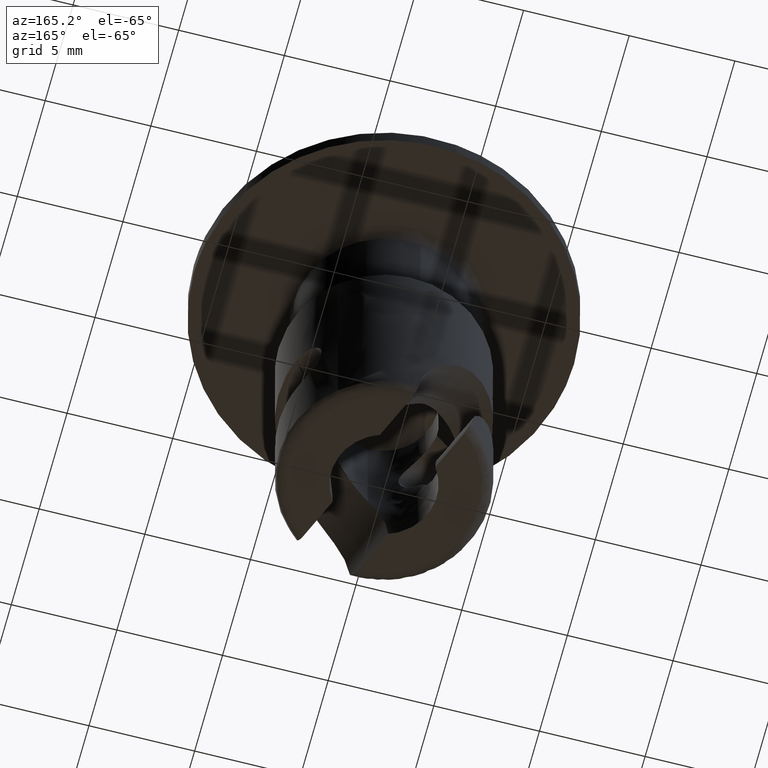
[diagram: clean part render]
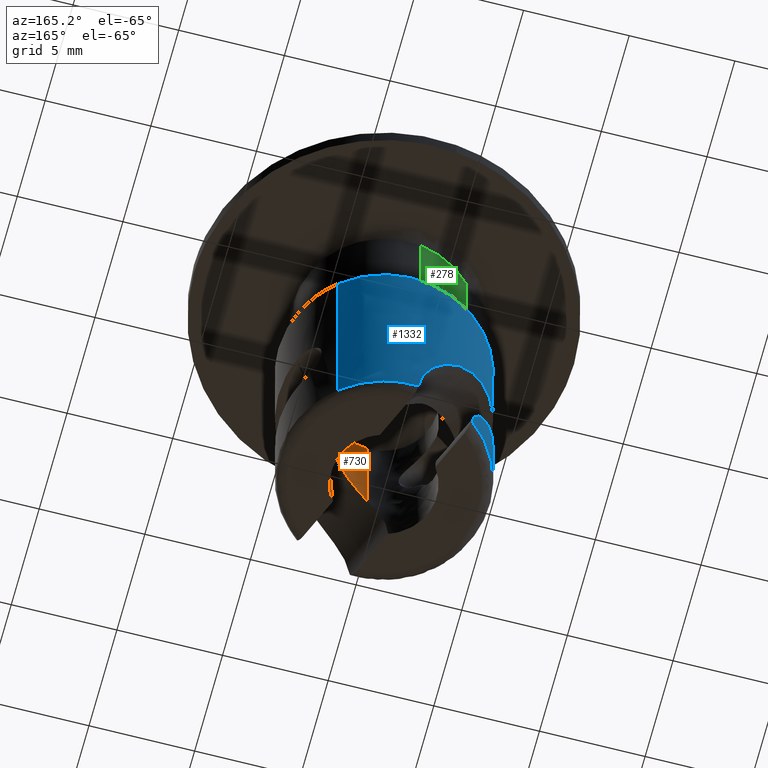
[diagram: same view with three faces highlighted in distinct colors, each labeled with its STEP entity id]
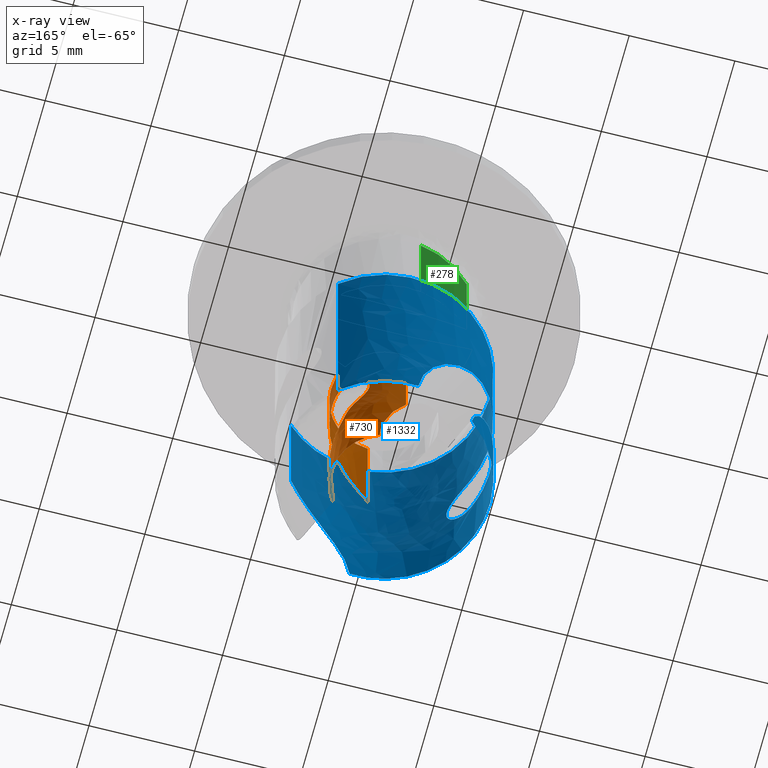
[diagram: x-ray of the same camera — body ghosted, the three highlighted faces saturated]
A machine part, auxiliary view with three faces highlighted in distinct colors.
The next image is the same camera in x-ray (body ghosted, the three faces saturated) — at least one of them is partly hidden behind the body in this view.
Their STEP definitions:

[orange] entity #730 — the highlighted face is a freeform B-spline surface patch.
#465=CARTESIAN_POINT('',(-0.396704945280490,2.468324368147347,-8.774992000000001));
#466=CARTESIAN_POINT('',(-0.253725209773061,2.491303831009947,-8.774992000000001));
#467=CARTESIAN_POINT('',(-0.109048468413340,2.497620553954643,-8.774991999999999));
#468=CARTESIAN_POINT('',(2.388572085541303,2.606669022367983,-8.774991999999999));
#469=CARTESIAN_POINT('',(2.497620553954643,0.109048468413340,-8.774991999999999));
#470=CARTESIAN_POINT('',(2.606669022367983,-2.388572085541303,-8.774991999999999));
#471=CARTESIAN_POINT('',(0.109048468413340,-2.497620553954643,-8.774991999999999));
#472=CARTESIAN_POINT('',(-0.396704945280490,2.468324368147347,-18.230616999999999));
#473=CARTESIAN_POINT('',(-0.253725209773061,2.491303831009947,-18.230616999999999));
#474=CARTESIAN_POINT('',(-0.109048468413340,2.497620553954643,-18.230616999999999));
#475=CARTESIAN_POINT('',(2.388572085541303,2.606669022367983,-18.230616999999995));
#476=CARTESIAN_POINT('',(2.497620553954643,0.109048468413340,-18.230616999999999));
#477=CARTESIAN_POINT('',(2.606669022367983,-2.388572085541303,-18.230616999999995));
#478=CARTESIAN_POINT('',(0.109048468413340,-2.497620553954643,-18.230616999999999));
#486=(BOUNDED_SURFACE()B_SPLINE_SURFACE(2,1,((#465,#472),(#466,#473),(#467,#474),(#468,#475),(#469,#476),(#470,#477),(#471,#478)),.UNSPECIFIED.,.F.,.F.,.U.)B_SPLINE_SURFACE_WITH_KNOTS((3,2,2,3),(2,2),(0.0,0.331370849898476,4.473506473629424,8.615642097360373),(0.0,9.455625000000005),.UNSPECIFIED.)GEOMETRIC_REPRESENTATION_ITEM()RATIONAL_B_SPLINE_SURFACE(((0.956886118190660,0.956886118190660),(0.976568542494924,0.976568542494924),(1.0,1.0),(0.707106781186548,0.707106781186548),(1.0,1.0),(0.707106781186548,0.707106781186548),(1.0,1.0)))REPRESENTATION_ITEM('')SURFACE());
#487=CARTESIAN_POINT('',(-0.396705262397814,2.468326342398648,-14.257818604120629));
#488=VERTEX_POINT('',#487);
#489=CARTESIAN_POINT('',(0.821620629966657,2.361130987559410,-17.999991999999999));
#490=VERTEX_POINT('',#489);
#491=CARTESIAN_POINT('',(-0.396705262397814,2.468326342398648,-14.257818604120629));
#492=CARTESIAN_POINT('',(-0.374689728732181,2.471862556015108,-14.292135446351010));
#493=CARTESIAN_POINT('',(-0.352860775295733,2.475066859503342,-14.326635483322530));
#494=CARTESIAN_POINT('',(-0.274510751987947,2.485539854627478,-14.452236586623471));
#495=CARTESIAN_POINT('',(-0.219122534947130,2.490963330062837,-14.544421271481349));
#496=CARTESIAN_POINT('',(-0.111245094673721,2.498106902240840,-14.731391844103101));
#497=CARTESIAN_POINT('',(-0.058756051455334,2.499816637977689,-14.826203044071510));
#498=CARTESIAN_POINT('',(0.092550910449953,2.500320389652285,-15.111869867121820));
#499=CARTESIAN_POINT('',(0.185777978705443,2.494552241246467,-15.304874506508179));
#500=CARTESIAN_POINT('',(0.355782634028354,2.476029930818079,-15.696684103216359));
#501=CARTESIAN_POINT('',(0.432564614344896,2.463259284224091,-15.895486642062760));
#502=CARTESIAN_POINT('',(0.567810437404402,2.435641776414513,-16.299821152886910));
#503=CARTESIAN_POINT('',(0.626276591544811,2.420796277435291,-16.505352327864390));
#504=CARTESIAN_POINT('',(0.698214385252341,2.400648686511582,-16.819624382292108));
#505=CARTESIAN_POINT('',(0.719589156789086,2.394277061143177,-16.925553476065271));
#506=CARTESIAN_POINT('',(0.756523998607965,2.382864482991104,-17.138808192220012));
#507=CARTESIAN_POINT('',(0.772021192912830,2.377846312257507,-17.245723948288880));
#508=CARTESIAN_POINT('',(0.809320382263603,2.365520120731887,-17.567381413073349));
#509=CARTESIAN_POINT('',(0.821911469345533,2.361029684390025,-17.783037621031980));
#510=CARTESIAN_POINT('',(0.821620629966657,2.361130987559410,-17.999991999999999));
#511=B_SPLINE_CURVE_WITH_KNOTS('',3,(#491,#492,#493,#494,#495,#496,#497,#498,#499,#500,#501,#502,#503,#504,#505,#506,#507,#508,#509,#510),.UNSPECIFIED.,.F.,.U.,(4,2,2,2,2,2,2,2,2,4),(0.226156631961542,0.249999999999999,0.312499999999999,0.374999999999998,0.499999999999999,0.624999999999998,0.749999999999997,0.812499999999998,0.874999999999999,1.0),.UNSPECIFIED.);
#512=EDGE_CURVE('',#488,#490,#511,.T.);
#513=ORIENTED_EDGE('',*,*,#512,.T.);
#514=CARTESIAN_POINT('',(2.045401301169760,-1.437474677679406,-17.999991999999999));
#515=VERTEX_POINT('',#514);
#516=CARTESIAN_POINT('',(2.045401301169760,-1.437474677679406,-17.999991999999999));
#517=CARTESIAN_POINT('',(2.761412070532111,-0.418653702509701,-17.999991999999999));
#518=CARTESIAN_POINT('',(2.379559821214619,0.766612703206290,-17.999991999999999));
#519=CARTESIAN_POINT('',(1.997707571897127,1.951879108922280,-17.999991999999999));
#520=CARTESIAN_POINT('',(0.821620629966657,2.361130987559410,-17.999991999999999));
#528=(BOUNDED_CURVE()B_SPLINE_CURVE(2,(#516,#517,#518,#519,#520),.UNSPECIFIED.,.F.,.U.)B_SPLINE_CURVE_WITH_KNOTS((3,2,3),(0.0,0.500000000000000,1.0),.UNSPECIFIED.)CURVE()GEOMETRIC_REPRESENTATION_ITEM()RATIONAL_B_SPLINE_CURVE((1.0,0.895105287378953,1.0,0.895105287378953,1.0))REPRESENTATION_ITEM(''));
#529=EDGE_CURVE('',#515,#490,#528,.T.);
#530=ORIENTED_EDGE('',*,*,#529,.F.);
#531=CARTESIAN_POINT('',(2.499210753731970,0.062814078282511,-15.336850570813599));
#532=VERTEX_POINT('',#531);
#533=CARTESIAN_POINT('',(2.499210753731970,0.062814078282511,-15.336850570813599));
#534=CARTESIAN_POINT('',(2.500795930451270,-0.000256029753238,-15.363059882491539));
#535=CARTESIAN_POINT('',(2.499969302792424,-0.062337213410371,-15.392029377248811));
#536=CARTESIAN_POINT('',(2.495447517314723,-0.153866172688587,-15.439862898441520));
#537=CARTESIAN_POINT('',(2.493384361566834,-0.184189313353710,-15.456587649218131));
#538=CARTESIAN_POINT('',(2.488274884368984,-0.243678840850571,-15.491192952226440));
#539=CARTESIAN_POINT('',(2.485229559556989,-0.272890545252784,-15.509092108229609));
#540=CARTESIAN_POINT('',(2.467798225914552,-0.416335598189665,-15.601558018541059));
#541=CARTESIAN_POINT('',(2.446841958596684,-0.522766882387621,-15.684994209115510));
#542=CARTESIAN_POINT('',(2.408978557939195,-0.670374897581073,-15.824677966676530));
#543=CARTESIAN_POINT('',(2.395286913211638,-0.717472967083684,-15.873630825600189));
#544=CARTESIAN_POINT('',(2.366917471059800,-0.806144242856497,-15.974564309344590));
#545=CARTESIAN_POINT('',(2.352181641734803,-0.847952127497165,-16.026757931051929));
#546=CARTESIAN_POINT('',(2.322218960212438,-0.926865894868870,-16.134503675885409));
#547=CARTESIAN_POINT('',(2.306991163065410,-0.963971179851998,-16.190055984325440));
#548=CARTESIAN_POINT('',(2.276576764679876,-1.033753789142683,-16.304461251146741));
#549=CARTESIAN_POINT('',(2.261334952213895,-1.066536558688048,-16.363545406494140));
#550=CARTESIAN_POINT('',(2.216973387833687,-1.157399233681560,-16.543290554489442));
#551=CARTESIAN_POINT('',(2.189142644228118,-1.208352199881593,-16.666746987157978));
#552=CARTESIAN_POINT('',(2.139487239111169,-1.294239123739205,-16.920290638804978));
#553=CARTESIAN_POINT('',(2.117646197656682,-1.329159387210768,-17.050379410624021));
#554=CARTESIAN_POINT('',(2.090766276917059,-1.370754864690058,-17.250328398531369));
#555=CARTESIAN_POINT('',(2.082778451008068,-1.382817708224666,-17.317889944048510));
#556=CARTESIAN_POINT('',(2.069089281024604,-1.403217886613616,-17.453118900737412));
#557=CARTESIAN_POINT('',(2.063360999046204,-1.411597122432164,-17.520957845477479));
#558=CARTESIAN_POINT('',(2.049634837084111,-1.431522695728585,-17.725132787668858));
#559=CARTESIAN_POINT('',(2.045100114556330,-1.437903263725405,-17.862123124114230));
#560=CARTESIAN_POINT('',(2.045401301169760,-1.437474677679406,-17.999991999999999));
#561=B_SPLINE_CURVE_WITH_KNOTS('',3,(#533,#534,#535,#536,#537,#538,#539,#540,#541,#542,#543,#544,#545,#546,#547,#548,#549,#550,#551,#552,#553,#554,#555,#556,#557,#558,#559,#560),.UNSPECIFIED.,.F.,.U.,(4,2,2,2,2,2,2,2,2,2,2,2,2,4),(0.0,0.062500000000001,0.093750000000001,0.125000000000001,0.249999999999999,0.312499999999999,0.374999999999998,0.437499999999998,0.499999999999997,0.624999999999999,0.750000000000000,0.812500000000001,0.875000000000002,1.0),.UNSPECIFIED.);
#562=EDGE_CURVE('',#532,#515,#561,.T.);
#563=ORIENTED_EDGE('',*,*,#562,.F.);
#564=CARTESIAN_POINT('',(2.192192570131095,1.201647703399704,-14.404152898566460));
#565=VERTEX_POINT('',#564);
#566=CARTESIAN_POINT('',(2.499210753731970,0.062814078282511,-15.336850570813599));
#567=CARTESIAN_POINT('',(2.496415410786188,0.174694188051851,-15.289002052346190));
#568=CARTESIAN_POINT('',(2.483958686722091,0.302198127169140,-15.223639530466480));
#569=CARTESIAN_POINT('',(2.466577816313009,0.407423460385551,-15.164988117721110));
#570=CARTESIAN_POINT('',(2.447945831850765,0.520223149203102,-15.102114844677811));
#571=CARTESIAN_POINT('',(2.422885276804002,0.625094283376247,-15.036186741589930));
#572=CARTESIAN_POINT('',(2.392268510254653,0.725983040322050,-14.959322956661600));
#573=CARTESIAN_POINT('',(2.331676711067861,0.925645904498509,-14.807206468017799));
#574=CARTESIAN_POINT('',(2.252528130132407,1.091549864821100,-14.629794512008679));
#575=CARTESIAN_POINT('',(2.192192570131095,1.201647703399704,-14.404152898566460));
#576=B_SPLINE_CURVE_WITH_KNOTS('',3,(#566,#567,#568,#569,#570,#571,#572,#573,#574,#575),.UNSPECIFIED.,.F.,.U.,(4,3,3,4),(0.0,0.365143920411378,0.756571719564218,1.531222908290109),.UNSPECIFIED.);
#577=EDGE_CURVE('',#532,#565,#576,.T.);
#578=ORIENTED_EDGE('',*,*,#577,.T.);
#579=CARTESIAN_POINT('',(1.826832561643425,1.706658369949690,-13.730946735680639));
#580=VERTEX_POINT('',#579);
#581=CARTESIAN_POINT('',(2.192192570131095,1.201647703399704,-14.404152898566460));
#582=CARTESIAN_POINT('',(2.186844966385770,1.211406282436965,-14.384209296597820));
#583=CARTESIAN_POINT('',(2.163625660492693,1.253140384245844,-14.301929838929320));
#584=CARTESIAN_POINT('',(2.115962694207326,1.333576215291075,-14.163932923806501));
#585=CARTESIAN_POINT('',(2.038082448045725,1.450011516401663,-14.001030671284740));
#586=CARTESIAN_POINT('',(1.944205139115999,1.575503629101182,-13.854140787470540));
#587=CARTESIAN_POINT('',(1.866094248091077,1.662786492993607,-13.772155712330390));
#588=CARTESIAN_POINT('',(1.826832561643425,1.706658369949690,-13.730946735680639));
#589=B_SPLINE_CURVE_WITH_KNOTS('',3,(#581,#582,#583,#584,#585,#586,#587,#588),.UNSPECIFIED.,.F.,.U.,(4,1,1,1,1,4),(0.459845224448665,0.499751192141575,0.626042495365312,0.750448278474783,0.874565042289710,0.999999521519359),.UNSPECIFIED.);
#590=EDGE_CURVE('',#565,#580,#589,.T.);
#591=ORIENTED_EDGE('',*,*,#590,.T.);
#592=CARTESIAN_POINT('',(2.499989811886465,0.007137258887898,-11.356055959354819));
#593=VERTEX_POINT('',#592);
#594=CARTESIAN_POINT('',(1.826832561643425,1.706658369949690,-13.730946735680639));
#595=CARTESIAN_POINT('',(1.767066150700487,1.770633227207039,-13.673676512274250));
#596=CARTESIAN_POINT('',(1.708087313436016,1.827073773717808,-13.609373454987249));
#597=CARTESIAN_POINT('',(1.622599312566099,1.902264882210716,-13.502324896482071));
#598=CARTESIAN_POINT('',(1.594487675239643,1.925829609637523,-13.464683873818780));
#599=CARTESIAN_POINT('',(1.540274407698292,1.969458143966866,-13.386452072127550));
#600=CARTESIAN_POINT('',(1.514283413102934,1.989444885664758,-13.346047001473689));
#601=CARTESIAN_POINT('',(1.440210819629576,2.044400554736581,-13.220854595772471));
#602=CARTESIAN_POINT('',(1.395950273623527,2.074428964313699,-13.132156517223670));
#603=CARTESIAN_POINT('',(1.340601731230505,2.110277273683501,-12.989753096874020));
#604=CARTESIAN_POINT('',(1.324058643692039,2.120645274407327,-12.940692472383930));
#605=CARTESIAN_POINT('',(1.296190268535969,2.137792894448473,-12.841995163376200));
#606=CARTESIAN_POINT('',(1.273259887340772,2.151535743989545,-12.742058105927750));
#607=CARTESIAN_POINT('',(1.260957093931493,2.158703686364656,-12.639533815316650));
#608=CARTESIAN_POINT('',(1.254398331455981,2.162521496841352,-12.535633052693390));
#609=CARTESIAN_POINT('',(1.254048515237521,2.162723130800720,-12.482654759737279));
#610=CARTESIAN_POINT('',(1.261837122515462,2.158194419537191,-12.326749444831661));
#611=CARTESIAN_POINT('',(1.278553593121174,2.148554206773818,-12.225290376059970));
#612=CARTESIAN_POINT('',(1.318693345202184,2.123980691720526,-12.076481239932029));
#613=CARTESIAN_POINT('',(1.334683896815955,2.114017702788071,-12.027266377413770));
#614=CARTESIAN_POINT('',(1.370442084734734,2.091014214324975,-11.932221965913390));
#615=CARTESIAN_POINT('',(1.390266019158191,2.077940640959833,-11.886106565062700));
#616=CARTESIAN_POINT('',(1.433210510972533,2.048556697437584,-11.796443556882661));
#617=CARTESIAN_POINT('',(1.456332210154970,2.032246174052890,-11.752896529221641));
#618=CARTESIAN_POINT('',(1.505419730975699,1.996156169210344,-11.668234258772490));
#619=CARTESIAN_POINT('',(1.531409408084433,1.976347941682260,-11.627121329162200));
#620=CARTESIAN_POINT('',(1.611519076577197,1.912503624276998,-11.509521960240100));
#621=CARTESIAN_POINT('',(1.668203518758274,1.863775169582016,-11.437863437489019));
#622=CARTESIAN_POINT('',(1.756063050032434,1.779854707552776,-11.339943142484961));
#623=CARTESIAN_POINT('',(1.785990336384930,1.749887901249459,-11.308772193386540));
#624=CARTESIAN_POINT('',(1.845427545424964,1.687088119567673,-11.250835837179009));
#625=CARTESIAN_POINT('',(1.875001186369977,1.654211330725529,-11.223976482824691));
#626=CARTESIAN_POINT('',(1.962890451351874,1.550883418684267,-11.149641820340660));
#627=CARTESIAN_POINT('',(2.020377166143445,1.475792478952029,-11.108323828988000));
#628=CARTESIAN_POINT('',(2.089645126030133,1.372589234133404,-11.067915933406560));
#629=CARTESIAN_POINT('',(2.103381344169588,1.351451293661468,-11.060401405680510));
#630=CARTESIAN_POINT('',(2.130168139240096,1.308822897380050,-11.046747996885930));
#631=CARTESIAN_POINT('',(2.143269605281312,1.287258820471910,-11.040577846239680));
#632=CARTESIAN_POINT('',(2.181681908314401,1.221811580463784,-11.024016226249589));
#633=CARTESIAN_POINT('',(2.230520450145986,1.132537271295754,-11.007121000227979));
#634=CARTESIAN_POINT('',(2.274404091119101,1.039131947814094,-11.000631366956631));
#635=CARTESIAN_POINT('',(2.315683667246536,0.943566811579788,-10.999535005959380));
#636=CARTESIAN_POINT('',(2.335074532501877,0.894490058363414,-11.001741282209970));
#637=CARTESIAN_POINT('',(2.387667182746537,0.748189529353685,-11.016369944680340));
#638=CARTESIAN_POINT('',(2.415924851106237,0.650613009977472,-11.036606894694820));
#639=CARTESIAN_POINT('',(2.449096904067958,0.504402516073129,-11.082268251779720));
#640=CARTESIAN_POINT('',(2.458567689125642,0.455801576212480,-11.100064082836560));
#641=CARTESIAN_POINT('',(2.474270545222761,0.360964579887615,-11.139859409493260));
#642=CARTESIAN_POINT('',(2.480572186137989,0.314435503245946,-11.161944127018970));
#643=CARTESIAN_POINT('',(2.490445003023936,0.223140635600161,-11.210361875260030));
#644=CARTESIAN_POINT('',(2.494015086089279,0.178374779867292,-11.236695055424420));
#645=CARTESIAN_POINT('',(2.498741397121464,0.090665550486914,-11.293647847729520));
#646=CARTESIAN_POINT('',(2.499872953441342,0.048069628877703,-11.324059681580829));
#647=CARTESIAN_POINT('',(2.499989811886465,0.007137258887898,-11.356055959354819));
#648=B_SPLINE_CURVE_WITH_KNOTS('',3,(#594,#595,#596,#597,#598,#599,#600,#601,#602,#603,#604,#605,#606,#607,#608,#609,#610,#611,#612,#613,#614,#615,#616,#617,#618,#619,#620,#621,#622,#623,#624,#625,#626,#627,#628,#629,#630,#631,#632,#633,#634,#635,#636,#637,#638,#639,#640,#641,#642,#643,#644,#645,#646,#647),.UNSPECIFIED.,.F.,.U.,(4,2,2,2,2,2,1,2,2,2,2,2,2,2,2,2,2,2,2,2,1,2,2,2,2,2,2,4),(0.0,0.062500000000001,0.093750000000001,0.125000000000001,0.187500000000001,0.218750000000001,0.250000000000001,0.281250000000001,0.312500000000000,0.375000000000001,0.406250000000001,0.437500000000001,0.468750000000001,0.500000000000002,0.562500000000001,0.593750000000001,0.625000000000000,0.687500000000000,0.703125000000000,0.718750000000001,0.750000000000000,0.781250000000000,0.812500000000000,0.875000000000000,0.906250000000000,0.937500000000000,0.968750000000000,1.0),.UNSPECIFIED.);
#649=EDGE_CURVE('',#580,#593,#648,.T.);
#650=ORIENTED_EDGE('',*,*,#649,.T.);
#651=CARTESIAN_POINT('',(1.068076637585400,-2.260356674563610,-13.330051027094740));
#652=VERTEX_POINT('',#651);
#653=CARTESIAN_POINT('',(2.499989811886465,0.007137258887898,-11.356055959354819));
#654=CARTESIAN_POINT('',(2.500635302431740,-0.220367680449061,-11.533607172706420));
#655=CARTESIAN_POINT('',(2.466913159401899,-0.479463775346349,-11.666371313789890));
#656=CARTESIAN_POINT('',(2.392718981521097,-0.724496980992702,-11.799552767238350));
#657=CARTESIAN_POINT('',(2.317349511813432,-0.973411697724318,-11.934843915520000));
#658=CARTESIAN_POINT('',(2.205994946795966,-1.202556240769691,-12.063638772019379));
#659=CARTESIAN_POINT('',(2.065017779249427,-1.409149233561545,-12.216568695621090));
#660=CARTESIAN_POINT('',(1.925147421957820,-1.614120266946793,-12.368297968006191));
#661=CARTESIAN_POINT('',(1.762923045121994,-1.786533561041187,-12.534184437228660));
#662=CARTESIAN_POINT('',(1.591144079601706,-1.928279159755421,-12.721264061250981));
#663=CARTESIAN_POINT('',(1.417901861624350,-2.071232179849619,-12.909937272233670));
#664=CARTESIAN_POINT('',(1.244365749705180,-2.177093283273744,-13.110881300158709));
#665=CARTESIAN_POINT('',(1.068076637585400,-2.260356674563610,-13.330051027094740));
#666=B_SPLINE_CURVE_WITH_KNOTS('',3,(#653,#654,#655,#656,#657,#658,#659,#660,#661,#662,#663,#664,#665),.UNSPECIFIED.,.F.,.U.,(4,3,3,3,4),(0.0,0.865765630520426,1.745245642662072,2.617820866507953,3.497828885378547),.UNSPECIFIED.);
#667=EDGE_CURVE('',#593,#652,#666,.T.);
#668=ORIENTED_EDGE('',*,*,#667,.T.);
#669=CARTESIAN_POINT('',(0.109048438459500,-2.497619867234626,-14.736618834905901));
#670=VERTEX_POINT('',#669);
#671=CARTESIAN_POINT('',(1.068076637585414,-2.260356674563605,-13.330051027094740));
#672=CARTESIAN_POINT('',(0.937149948566862,-2.322222900965297,-13.492076449016279));
#673=CARTESIAN_POINT('',(0.809622159256879,-2.368735237159182,-13.659008977676500));
#674=CARTESIAN_POINT('',(0.563383148044197,-2.439055983986251,-14.002714674341179));
#675=CARTESIAN_POINT('',(0.444653030483377,-2.462799112552335,-14.179485970060950));
#676=CARTESIAN_POINT('',(0.274511051210349,-2.485541717481331,-14.452236586627240));
#677=CARTESIAN_POINT('',(0.219122825742860,-2.490965140455178,-14.544421271485019));
#678=CARTESIAN_POINT('',(0.146285584374463,-2.495788301851827,-14.670660998231419));
#679=CARTESIAN_POINT('',(0.127565032722992,-2.496811146284721,-14.703578206689921));
#680=CARTESIAN_POINT('',(0.109048438459500,-2.497619867234626,-14.736618834905901));
#681=B_SPLINE_CURVE_WITH_KNOTS('',3,(#671,#672,#673,#674,#675,#676,#677,#678,#679,#680),.UNSPECIFIED.,.F.,.U.,(4,2,2,2,4),(0.0,0.124999999999999,0.249999999999999,0.312499999999999,0.334398125448549),.UNSPECIFIED.);
#682=EDGE_CURVE('',#652,#670,#681,.T.);
#683=ORIENTED_EDGE('',*,*,#682,.T.);
#684=CARTESIAN_POINT('',(0.109045268240143,-2.497620693673115,-8.999992000000001));
#685=VERTEX_POINT('',#684);
#686=CARTESIAN_POINT('',(0.109045268240143,-2.497620693673115,-8.999992000000001));
#687=CARTESIAN_POINT('',(0.109048438459500,-2.497619867234626,-14.736618834905901));
#688=QUASI_UNIFORM_CURVE('',1,(#686,#687),.UNSPECIFIED.,.F.,.U.);
#689=EDGE_CURVE('',#685,#670,#688,.T.);
#690=ORIENTED_EDGE('',*,*,#689,.F.);
#691=CARTESIAN_POINT('',(2.500000000000000,0.0,-8.999992000000001));
#692=VERTEX_POINT('',#691);
#693=CARTESIAN_POINT('',(0.109045268240143,-2.497620693673115,-8.999992000000001));
#694=CARTESIAN_POINT('',(2.500000000000000,-2.393232424977988,-8.999992000000001));
#695=CARTESIAN_POINT('',(2.500000000000000,0.0,-8.999992000000001));
#703=(BOUNDED_CURVE()B_SPLINE_CURVE(2,(#693,#694,#695),.UNSPECIFIED.,.F.,.U.)B_SPLINE_CURVE_WITH_KNOTS((3,3),(0.257645238861782,0.500000000000000),.UNSPECIFIED.)CURVE()GEOMETRIC_REPRESENTATION_ITEM()RATIONAL_B_SPLINE_CURVE((0.982633915500902,0.716063735661848,1.0))REPRESENTATION_ITEM(''));
#704=EDGE_CURVE('',#685,#692,#703,.T.);
#705=ORIENTED_EDGE('',*,*,#704,.T.);
#706=CARTESIAN_POINT('',(-0.396702041810263,2.468324834784700,-8.999992000000001));
#707=VERTEX_POINT('',#706);
#708=CARTESIAN_POINT('',(2.500000000000000,0.0,-8.999992000000001));
#709=CARTESIAN_POINT('',(2.500000000000000,2.500000000000000,-8.999992000000002));
#710=CARTESIAN_POINT('',(0.0,2.500000000000000,-8.999992000000001));
#711=CARTESIAN_POINT('',(-0.199615592278192,2.500000000000000,-8.999992000000001));
#712=CARTESIAN_POINT('',(-0.396702041810263,2.468324834784700,-8.999992000000001));
#720=(BOUNDED_CURVE()B_SPLINE_CURVE(2,(#708,#709,#710,#711,#712),.UNSPECIFIED.,.F.,.U.)B_SPLINE_CURVE_WITH_KNOTS((3,2,3),(0.500000000000000,0.750000000000000,0.777326139598293),.UNSPECIFIED.)CURVE()GEOMETRIC_REPRESENTATION_ITEM()RATIONAL_B_SPLINE_CURVE((1.0,0.707106781186548,1.0,0.967985436061241,0.942969547669435))REPRESENTATION_ITEM(''));
#721=EDGE_CURVE('',#692,#707,#720,.T.);
#722=ORIENTED_EDGE('',*,*,#721,.T.);
#723=CARTESIAN_POINT('',(-0.396702041810263,2.468324834784700,-8.999992000000001));
#724=CARTESIAN_POINT('',(-0.396705262397814,2.468326342398648,-14.257818604120629));
#725=QUASI_UNIFORM_CURVE('',1,(#723,#724),.UNSPECIFIED.,.F.,.U.);
#726=EDGE_CURVE('',#707,#488,#725,.T.);
#727=ORIENTED_EDGE('',*,*,#726,.T.);
#728=EDGE_LOOP('',(#513,#530,#563,#578,#591,#650,#668,#683,#690,#705,#722,#727));
#729=FACE_OUTER_BOUND('',#728,.T.);
#730=ADVANCED_FACE('',(#729),#486,.F.);

[blue] entity #1332 — the highlighted face is a freeform B-spline surface patch.
#1028=CARTESIAN_POINT('',(3.205212373083344,3.837527021850584,-17.787500000000009));
#1029=CARTESIAN_POINT('',(-0.212073591573738,6.691742039469135,-17.787500000000001));
#1030=CARTESIAN_POINT('',(-3.441772878468769,3.626871855061437,-17.787500000000009));
#1031=CARTESIAN_POINT('',(-7.068644733530205,0.185098976592668,-17.787500000000009));
#1032=CARTESIAN_POINT('',(-3.626871855061437,-3.441772878468769,-17.787500000000009));
#1033=CARTESIAN_POINT('',(-0.185098976592668,-7.068644733530205,-17.787500000000009));
#1034=CARTESIAN_POINT('',(3.441772878468769,-3.626871855061437,-17.787500000000009));
#1035=CARTESIAN_POINT('',(3.205212373083344,3.837527021850584,-5.705312499999998));
#1036=CARTESIAN_POINT('',(-0.212073591573738,6.691742039469135,-5.705312499999998));
#1037=CARTESIAN_POINT('',(-3.441772878468769,3.626871855061437,-5.705312499999998));
#1038=CARTESIAN_POINT('',(-7.068644733530205,0.185098976592668,-5.705312499999998));
#1039=CARTESIAN_POINT('',(-3.626871855061437,-3.441772878468769,-5.705312499999998));
#1040=CARTESIAN_POINT('',(-0.185098976592668,-7.068644733530205,-5.705312499999998));
#1041=CARTESIAN_POINT('',(3.441772878468769,-3.626871855061437,-5.705312499999998));
#1049=(BOUNDED_SURFACE()B_SPLINE_SURFACE(2,1,((#1028,#1035),(#1029,#1036),(#1030,#1037),(#1031,#1038),(#1032,#1039),(#1033,#1040),(#1034,#1041)),.UNSPECIFIED.,.F.,.F.,.U.)B_SPLINE_SURFACE_WITH_KNOTS((3,2,2,3),(2,2),(0.0,7.621529547664943,15.905800795126840,24.190072042588739),(0.0,12.082187500000011),.UNSPECIFIED.)GEOMETRIC_REPRESENTATION_ITEM()RATIONAL_B_SPLINE_SURFACE(((0.956886118190660,0.956886118190660),(0.730538238691624,0.730538238691624),(1.0,1.0),(0.707106781186548,0.707106781186548),(1.0,1.0),(0.707106781186548,0.707106781186548),(1.0,1.0)))REPRESENTATION_ITEM('')SURFACE());
#1050=CARTESIAN_POINT('',(3.205213401254789,3.837526163091908,-17.500000000000011));
#1051=VERTEX_POINT('',#1050);
#1052=CARTESIAN_POINT('',(-0.313195308170528,4.990181229067730,-17.500000000000000));
#1053=VERTEX_POINT('',#1052);
#1054=CARTESIAN_POINT('',(3.205213401254788,3.837526163091908,-17.500000000000004));
#1055=CARTESIAN_POINT('',(1.675712606194271,5.115009686906861,-17.500000000000000));
#1056=CARTESIAN_POINT('',(-0.313195308170527,4.990181229067735,-17.500000000000000));
#1064=(BOUNDED_CURVE()B_SPLINE_CURVE(2,(#1054,#1055,#1056),.UNSPECIFIED.,.F.,.U.)B_SPLINE_CURVE_WITH_KNOTS((3,3),(0.701706668994408,1.0),.UNSPECIFIED.)CURVE()GEOMETRIC_REPRESENTATION_ITEM()RATIONAL_B_SPLINE_CURVE((0.906937278602768,0.884655869509436,1.0))REPRESENTATION_ITEM(''));
#1065=EDGE_CURVE('',#1051,#1053,#1064,.T.);
#1066=ORIENTED_EDGE('',*,*,#1065,.T.);
#1067=CARTESIAN_POINT('',(-4.602524578819660,-1.953654908462775,-11.0));
#1068=VERTEX_POINT('',#1067);
#1069=CARTESIAN_POINT('',(-0.313195308170528,4.990181229067730,-17.500000000000000));
#1070=CARTESIAN_POINT('',(-0.333545851804894,4.988903981911282,-17.227404034916059));
#1071=CARTESIAN_POINT('',(-0.370451384091151,4.986533046700084,-16.959249060605970));
#1072=CARTESIAN_POINT('',(-0.474881855281473,4.977673480385341,-16.431225059849350));
#1073=CARTESIAN_POINT('',(-0.542409124009916,4.971179196966261,-16.171356847581681));
#1074=CARTESIAN_POINT('',(-0.706406020038392,4.950537425473402,-15.659581951972100));
#1075=CARTESIAN_POINT('',(-0.802873824092456,4.936397977225640,-15.407674507044280));
#1076=CARTESIAN_POINT('',(-0.940996612575545,4.910734653344343,-15.097729918009920));
#1077=CARTESIAN_POINT('',(-0.969551043867783,4.905187357017825,-15.035885008049741));
#1078=CARTESIAN_POINT('',(-1.028087493280968,4.893253349283264,-14.913361771660901));
#1079=CARTESIAN_POINT('',(-1.118051088080687,4.874092148370234,-14.731262537235420));
#1080=CARTESIAN_POINT('',(-1.214251395302762,4.850810000689117,-14.554138836756700));
#1081=CARTESIAN_POINT('',(-1.414408267091195,4.797760488926595,-14.206379579386390));
#1082=CARTESIAN_POINT('',(-1.558169819214899,4.753795887635032,-13.983168421206990));
#1083=CARTESIAN_POINT('',(-1.863907614147500,4.642447299941153,-13.553791083939510));
#1084=CARTESIAN_POINT('',(-2.025895583933862,4.575106692724225,-13.347622971084670));
#1085=CARTESIAN_POINT('',(-2.281063056653405,4.450361207056591,-13.051555063620009));
#1086=CARTESIAN_POINT('',(-2.367376569659462,4.405164397270800,-12.955982844506771));
#1087=CARTESIAN_POINT('',(-2.541146936122864,4.307263335180261,-12.771865472979149));
#1088=CARTESIAN_POINT('',(-2.628732671500905,4.254497812786170,-12.683171423565920));
#1089=CARTESIAN_POINT('',(-2.892723025411974,4.083638314925278,-12.427056668190851));
#1090=CARTESIAN_POINT('',(-3.070396017769358,3.953064536127259,-12.269582351309710));
#1091=CARTESIAN_POINT('',(-3.291380926773830,3.764331252449097,-12.089242760859021));
#1092=CARTESIAN_POINT('',(-3.335524028095407,3.725288414428776,-12.054003577542170));
#1093=CARTESIAN_POINT('',(-3.422664179133562,3.645389448269559,-11.985894069380750));
#1094=CARTESIAN_POINT('',(-3.552009706186948,3.522524370147846,-11.886989915287719));
#1095=CARTESIAN_POINT('',(-3.676897774425376,3.390498169590407,-11.797528488456930));
#1096=CARTESIAN_POINT('',(-3.919715576655276,3.113848121602382,-11.630378433644120));
#1097=CARTESIAN_POINT('',(-4.072369424853505,2.912669793240188,-11.534629349522550));
#1098=CARTESIAN_POINT('',(-4.247737079332164,2.638364945079648,-11.432128897164990));
#1099=CARTESIAN_POINT('',(-4.282124638523798,2.582196965308684,-11.412439115585441));
#1100=CARTESIAN_POINT('',(-4.348615455072795,2.468577770985544,-11.375064069439340));
#1101=CARTESIAN_POINT('',(-4.380752585837200,2.411089188979647,-11.357356393916991));
#1102=CARTESIAN_POINT('',(-4.473803432700943,2.236617988769805,-11.306958400578850));
#1103=CARTESIAN_POINT('',(-4.531360045320749,2.117632276851964,-11.276988912221560));
#1104=CARTESIAN_POINT('',(-4.637252253307961,1.874428408738170,-11.223280925048851));
#1105=CARTESIAN_POINT('',(-4.685588703104426,1.750210353618248,-11.199543618053600));
#1106=CARTESIAN_POINT('',(-4.772655318853499,1.496575752841048,-11.157395960413600));
#1107=CARTESIAN_POINT('',(-4.811415144130066,1.367047489399567,-11.138972828942750));
#1108=CARTESIAN_POINT('',(-4.912306264594551,0.971280223507314,-11.090556243802620));
#1109=CARTESIAN_POINT('',(-4.957497855358524,0.704510719052342,-11.068087001453550));
#1110=CARTESIAN_POINT('',(-4.992796520655977,0.300437993788355,-11.043235656493380));
#1111=CARTESIAN_POINT('',(-4.999123847875688,0.165089838578600,-11.036452067586101));
#1112=CARTESIAN_POINT('',(-5.000311054724800,-0.038895132051304,-11.027979446137721));
#1113=CARTESIAN_POINT('',(-4.999321247270415,-0.107050814775592,-11.025440123472841));
#1114=CARTESIAN_POINT('',(-4.994526163105690,-0.243682614082919,-11.020852335175150));
#1115=CARTESIAN_POINT('',(-4.990711570760093,-0.312171872780972,-11.018804783439700));
#1116=CARTESIAN_POINT('',(-4.964777035750553,-0.652258504024480,-11.009688347366311));
#1117=CARTESIAN_POINT('',(-4.922157790813721,-0.919353949308262,-11.005776204053770));
#1118=CARTESIAN_POINT('',(-4.794588090783871,-1.443874662666524,-11.000926861120540));
#1119=CARTESIAN_POINT('',(-4.709642351537385,-1.701301138292812,-10.999999999999980));
#1120=CARTESIAN_POINT('',(-4.602524578819680,-1.953654908462780,-11.0));
#1121=B_SPLINE_CURVE_WITH_KNOTS('',3,(#1069,#1070,#1071,#1072,#1073,#1074,#1075,#1076,#1077,#1078,#1079,#1080,#1081,#1082,#1083,#1084,#1085,#1086,#1087,#1088,#1089,#1090,#1091,#1092,#1093,#1094,#1095,#1096,#1097,#1098,#1099,#1100,#1101,#1102,#1103,#1104,#1105,#1106,#1107,#1108,#1109,#1110,#1111,#1112,#1113,#1114,#1115,#1116,#1117,#1118,#1119,#1120),.UNSPECIFIED.,.F.,.U.,(4,2,2,2,2,1,2,2,2,2,2,2,2,1,2,2,2,2,2,2,2,2,2,2,2,2,4),(0.0,0.062500000000001,0.125000000000002,0.187500000000002,0.203125000000002,0.218750000000002,0.250000000000002,0.312500000000003,0.375000000000003,0.406250000000003,0.437500000000003,0.500000000000003,0.515625000000003,0.531250000000003,0.562500000000003,0.625000000000003,0.640625000000003,0.656250000000003,0.687500000000003,0.718750000000002,0.750000000000002,0.812500000000002,0.843750000000001,0.859375000000001,0.875000000000001,0.937500000000001,1.0),.UNSPECIFIED.);
#1122=EDGE_CURVE('',#1053,#1068,#1121,.T.);
#1123=ORIENTED_EDGE('',*,*,#1122,.T.);
#1124=CARTESIAN_POINT('',(-4.602524578820329,-1.953654908461280,-14.0));
#1125=VERTEX_POINT('',#1124);
#1126=CARTESIAN_POINT('',(-4.602524578819660,-1.953654908462775,-11.0));
#1127=CARTESIAN_POINT('',(-4.583286532222240,-1.998976926148643,-10.999999999999600));
#1128=CARTESIAN_POINT('',(-4.563274655563525,-2.044255803955160,-11.002424994742920));
#1129=CARTESIAN_POINT('',(-4.521846569225862,-2.134329163576477,-11.012269923413930));
#1130=CARTESIAN_POINT('',(-4.500741525545569,-2.178452973019130,-11.019609078956670));
#1131=CARTESIAN_POINT('',(-4.436373648704045,-2.308227759730135,-11.048605119371841));
#1132=CARTESIAN_POINT('',(-4.392051281369687,-2.391298367197829,-11.077173352499090));
#1133=CARTESIAN_POINT('',(-4.324017515894583,-2.510971546438326,-11.134071833830941));
#1134=CARTESIAN_POINT('',(-4.301163931182855,-2.549880132075366,-11.155354799063311));
#1135=CARTESIAN_POINT('',(-4.256056699116482,-2.624477324109840,-11.201699691052321));
#1136=CARTESIAN_POINT('',(-4.211316329517159,-2.696268369799324,-11.252011376117590));
#1137=CARTESIAN_POINT('',(-4.167599939203551,-2.762714658213469,-11.310147404776210));
#1138=CARTESIAN_POINT('',(-4.124572976384838,-2.826549008673462,-11.372263431372611));
#1139=CARTESIAN_POINT('',(-4.103308352877659,-2.857291155668583,-11.405490144297771));
#1140=CARTESIAN_POINT('',(-4.042029548606869,-2.943977900124049,-11.509382067197381));
#1141=CARTESIAN_POINT('',(-4.004231603267071,-2.994873345709183,-11.584509900060111));
#1142=CARTESIAN_POINT('',(-3.953161702805851,-3.061584038341860,-11.706041815957470));
#1143=CARTESIAN_POINT('',(-3.937081752614207,-3.082202581260527,-11.748036722133000));
#1144=CARTESIAN_POINT('',(-3.907066437480246,-3.120163029684864,-11.835143000441660));
#1145=CARTESIAN_POINT('',(-3.893378860303747,-3.137193387719914,-11.879543103212081));
#1146=CARTESIAN_POINT('',(-3.856445384471975,-3.182664638921196,-12.015087199158859));
#1147=CARTESIAN_POINT('',(-3.837278353019773,-3.205574289447405,-12.108616680799161));
#1148=CARTESIAN_POINT('',(-3.817671569486336,-3.228852227722077,-12.253865452340490));
#1149=CARTESIAN_POINT('',(-3.812666791157221,-3.234748503088451,-12.303343915332009));
#1150=CARTESIAN_POINT('',(-3.806069059638138,-3.242508943995581,-12.401763191035760));
#1151=CARTESIAN_POINT('',(-3.802793230106265,-3.246344163889904,-12.500090310324950));
#1152=CARTESIAN_POINT('',(-3.806073135086067,-3.242504120765042,-12.598236533326849));
#1153=CARTESIAN_POINT('',(-3.812638279520694,-3.234782068754504,-12.696291615516630));
#1154=CARTESIAN_POINT('',(-3.817591363740609,-3.228947185350147,-12.745472610150189));
#1155=CARTESIAN_POINT('',(-3.837276998201714,-3.205576426201998,-12.891507983886770));
#1156=CARTESIAN_POINT('',(-3.856527665853865,-3.182565477519677,-12.985283578226690));
#1157=CARTESIAN_POINT('',(-3.893501301924083,-3.137041564271111,-13.120871618474290));
#1158=CARTESIAN_POINT('',(-3.907182975817483,-3.120016872454012,-13.165215513023220));
#1159=CARTESIAN_POINT('',(-3.937161496732801,-3.082100491476616,-13.252174254623640));
#1160=CARTESIAN_POINT('',(-3.953323122541688,-3.061376093025574,-13.294370421130560));
#1161=CARTESIAN_POINT('',(-4.004487075336397,-2.994533760061642,-13.416041364307640));
#1162=CARTESIAN_POINT('',(-4.042330353134814,-2.943565615185544,-13.491184628917170));
#1163=CARTESIAN_POINT('',(-4.103627075262498,-2.856833584734500,-13.595021533484569));
#1164=CARTESIAN_POINT('',(-4.124901405354690,-2.826069871977871,-13.628236157042551));
#1165=CARTESIAN_POINT('',(-4.167935147780712,-2.762209103071722,-13.690310673898530));
#1166=CARTESIAN_POINT('',(-4.189784654252073,-2.728989790958357,-13.719341698241450));
#1167=CARTESIAN_POINT('',(-4.256062892236825,-2.625385984949472,-13.800536159146700));
#1168=CARTESIAN_POINT('',(-4.301288601778197,-2.550958544738813,-13.846929859867110));
#1169=CARTESIAN_POINT('',(-4.392268042488658,-2.390910825542398,-13.922997411172091));
#1170=CARTESIAN_POINT('',(-4.436586017271868,-2.307808651805953,-13.951503057541650));
#1171=CARTESIAN_POINT('',(-4.500774740890319,-2.178381462752645,-13.980399608065410));
#1172=CARTESIAN_POINT('',(-4.521791275131987,-2.134439755168867,-13.987704217155621));
#1173=CARTESIAN_POINT('',(-4.562990200748778,-2.044883818747592,-13.997520022631180));
#1174=CARTESIAN_POINT('',(-4.583211102384047,-1.999154627789131,-13.999999999998980));
#1175=CARTESIAN_POINT('',(-4.602524578820329,-1.953654908461280,-14.0));
#1176=B_SPLINE_CURVE_WITH_KNOTS('',3,(#1126,#1127,#1128,#1129,#1130,#1131,#1132,#1133,#1134,#1135,#1136,#1137,#1138,#1139,#1140,#1141,#1142,#1143,#1144,#1145,#1146,#1147,#1148,#1149,#1150,#1151,#1152,#1153,#1154,#1155,#1156,#1157,#1158,#1159,#1160,#1161,#1162,#1163,#1164,#1165,#1166,#1167,#1168,#1169,#1170,#1171,#1172,#1173,#1174,#1175),.UNSPECIFIED.,.F.,.U.,(4,2,2,2,2,1,2,2,2,2,2,2,2,1,2,2,2,2,2,2,2,2,2,2,2,4),(0.0,0.031250000000000,0.062500000000000,0.124999999999999,0.156249999999999,0.187499999999999,0.218749999999998,0.249999999999998,0.312499999999998,0.343749999999999,0.374999999999999,0.437500000000000,0.468750000000001,0.500000000000001,0.531250000000002,0.562500000000003,0.625000000000003,0.656250000000003,0.687500000000003,0.750000000000003,0.781250000000003,0.812500000000002,0.875000000000002,0.937500000000001,0.968750000000001,1.0),.UNSPECIFIED.);
#1177=EDGE_CURVE('',#1068,#1125,#1176,.T.);
#1178=ORIENTED_EDGE('',*,*,#1177,.T.);
#1179=CARTESIAN_POINT('',(-3.124494516365075,3.903528406097000,-17.500000000000000));
#1180=VERTEX_POINT('',#1179);
#1181=CARTESIAN_POINT('',(-3.124494516365075,3.903528406097000,-17.500000000000000));
#1182=CARTESIAN_POINT('',(-3.141497206504565,3.889918972123851,-17.329085809428229));
#1183=CARTESIAN_POINT('',(-3.167168952576752,3.869232804745825,-17.161523228162331));
#1184=CARTESIAN_POINT('',(-3.234522902390568,3.813106773406463,-16.832917168264409));
#1185=CARTESIAN_POINT('',(-3.276211799409807,3.777668959982495,-16.671874808519089));
#1186=CARTESIAN_POINT('',(-3.350061010955970,3.711896800063882,-16.435346496150711));
#1187=CARTESIAN_POINT('',(-3.376628748647438,3.687799976673115,-16.357176245270630));
#1188=CARTESIAN_POINT('',(-3.433170327136708,3.635221022030246,-16.203323521975530));
#1189=CARTESIAN_POINT('',(-3.462929999925060,3.606938317087678,-16.128194424758060));
#1190=CARTESIAN_POINT('',(-3.556178790539175,3.515842038593942,-15.908095277418109));
#1191=CARTESIAN_POINT('',(-3.623638213816002,3.446810862760297,-15.768397395912210));
#1192=CARTESIAN_POINT('',(-3.730862855070702,3.329185653237318,-15.569323697495509));
#1193=CARTESIAN_POINT('',(-3.767610776932483,3.287623292947833,-15.504715556961459));
#1194=CARTESIAN_POINT('',(-3.823996741930348,3.221473015315171,-15.410452851249220));
#1195=CARTESIAN_POINT('',(-3.843002631034527,3.198787939437605,-15.379473757657911));
#1196=CARTESIAN_POINT('',(-3.881392731956737,3.152095170508525,-15.318405941831880));
#1197=CARTESIAN_POINT('',(-3.900819281501924,3.128032969908969,-15.288254606250710));
#1198=CARTESIAN_POINT('',(-3.998039103838049,3.005226209215020,-15.140862284514650));
#1199=CARTESIAN_POINT('',(-4.076340102817635,2.898732281949625,-15.033231626039550));
#1200=CARTESIAN_POINT('',(-4.230614691407395,2.668538328205927,-14.836740421009580));
#1201=CARTESIAN_POINT('',(-4.306598702808371,2.544837386058815,-14.747889131138500));
#1202=CARTESIAN_POINT('',(-4.416314565173591,2.345615716302215,-14.627637105199160));
#1203=CARTESIAN_POINT('',(-4.452262872957067,2.276721580310236,-14.589644062635980));
#1204=CARTESIAN_POINT('',(-4.521232362171111,2.136483974060858,-14.518897536067829));
#1205=CARTESIAN_POINT('',(-4.554385047638116,2.064922595269493,-14.485992889834700));
#1206=CARTESIAN_POINT('',(-4.649463263658962,1.846024188980841,-14.393977810021999));
#1207=CARTESIAN_POINT('',(-4.707009817866276,1.694479496519856,-14.341549436031720));
#1208=CARTESIAN_POINT('',(-4.783086171494693,1.459070671167150,-14.273843874661560));
#1209=CARTESIAN_POINT('',(-4.806756298661273,1.379181928370318,-14.253086766153380));
#1210=CARTESIAN_POINT('',(-4.850350629760796,1.217024106023433,-14.214934364085909));
#1211=CARTESIAN_POINT('',(-4.870108423593168,1.135388500586459,-14.197682453386649));
#1212=CARTESIAN_POINT('',(-4.923218031414556,0.888918800804065,-14.150619954407080));
#1213=CARTESIAN_POINT('',(-4.950415817333356,0.722527000254637,-14.125476623544710));
#1214=CARTESIAN_POINT('',(-4.978567056540598,0.470144202536802,-14.094570195949281));
#1215=CARTESIAN_POINT('',(-4.985840966187452,0.385549398354665,-14.085409897000931));
#1216=CARTESIAN_POINT('',(-4.996081838701168,0.215464010185017,-14.069022837299830));
#1217=CARTESIAN_POINT('',(-4.999049395421702,0.129792913045044,-14.061783214038700));
#1218=CARTESIAN_POINT('',(-5.001317324128484,-0.127237006973324,-14.042592190814441));
#1219=CARTESIAN_POINT('',(-4.994032914647900,-0.297581581727471,-14.033195913032360));
#1220=CARTESIAN_POINT('',(-4.962273247839041,-0.636210471582319,-14.018720468864769));
#1221=CARTESIAN_POINT('',(-4.937797715169578,-0.804495010058560,-14.013648068667820));
#1222=CARTESIAN_POINT('',(-4.888104775766375,-1.055318115743183,-14.008041504592530));
#1223=CARTESIAN_POINT('',(-4.869373207205517,-1.138658237221584,-14.006512037294300));
#1224=CARTESIAN_POINT('',(-4.827510985854213,-1.304789520842494,-14.003989803384840));
#1225=CARTESIAN_POINT('',(-4.804333977703628,-1.387715428520707,-14.002996223109520));
#1226=CARTESIAN_POINT('',(-4.728577989275444,-1.634033818140772,-14.000683434077031));
#1227=CARTESIAN_POINT('',(-4.669735641671323,-1.795315496828065,-13.999999999999980));
#1228=CARTESIAN_POINT('',(-4.602524578820329,-1.953654908461280,-14.0));
#1229=B_SPLINE_CURVE_WITH_KNOTS('',3,(#1181,#1182,#1183,#1184,#1185,#1186,#1187,#1188,#1189,#1190,#1191,#1192,#1193,#1194,#1195,#1196,#1197,#1198,#1199,#1200,#1201,#1202,#1203,#1204,#1205,#1206,#1207,#1208,#1209,#1210,#1211,#1212,#1213,#1214,#1215,#1216,#1217,#1218,#1219,#1220,#1221,#1222,#1223,#1224,#1225,#1226,#1227,#1228),.UNSPECIFIED.,.F.,.U.,(4,2,2,2,2,2,2,2,2,2,2,2,2,2,2,2,2,2,2,2,2,2,2,4),(0.0,0.062500000000002,0.125000000000003,0.156250000000004,0.187500000000004,0.250000000000004,0.281250000000005,0.296875000000005,0.312500000000005,0.375000000000004,0.437500000000004,0.468750000000003,0.500000000000003,0.562500000000003,0.593750000000002,0.625000000000002,0.687500000000002,0.718750000000002,0.750000000000002,0.812500000000001,0.875000000000001,0.906250000000001,0.937500000000001,1.0),.UNSPECIFIED.);
#1230=EDGE_CURVE('',#1180,#1125,#1229,.T.);
#1231=ORIENTED_EDGE('',*,*,#1230,.F.);
#1232=CARTESIAN_POINT('',(0.313195308170549,-4.990181229067730,-17.500000000000000));
#1233=VERTEX_POINT('',#1232);
#1234=CARTESIAN_POINT('',(-3.124494516365075,3.903528406097000,-17.500000000000000));
#1235=CARTESIAN_POINT('',(-5.984494709150617,1.614303379527478,-17.500000000000004));
#1236=CARTESIAN_POINT('',(-4.663729042102854,-1.802673409646462,-17.500000000000000));
#1237=CARTESIAN_POINT('',(-3.342963375055088,-5.219650198820404,-17.500000000000004));
#1238=CARTESIAN_POINT('',(0.313195308170550,-4.990181229067733,-17.500000000000000));
#1246=(BOUNDED_CURVE()B_SPLINE_CURVE(2,(#1234,#1235,#1236,#1237,#1238),.UNSPECIFIED.,.F.,.U.)B_SPLINE_CURVE_WITH_KNOTS((3,2,3),(0.0,0.500000000000000,1.0),.UNSPECIFIED.)CURVE()GEOMETRIC_REPRESENTATION_ITEM()RATIONAL_B_SPLINE_CURVE((1.0,0.806659890615518,1.0,0.806659890615518,1.0))REPRESENTATION_ITEM(''));
#1247=EDGE_CURVE('',#1180,#1233,#1246,.T.);
#1248=ORIENTED_EDGE('',*,*,#1247,.T.);
#1249=CARTESIAN_POINT('',(3.441772388405640,-3.626879167857965,-11.971468600115511));
#1250=VERTEX_POINT('',#1249);
#1251=CARTESIAN_POINT('',(0.313195308170549,-4.990181229067730,-17.500000000000000));
#1252=CARTESIAN_POINT('',(0.333307605160087,-4.988918687165163,-17.230595586466801));
#1253=CARTESIAN_POINT('',(0.369687607699450,-4.986585240363793,-16.964315957616080));
#1254=CARTESIAN_POINT('',(0.473361104742698,-4.977813315320827,-16.437737125240670));
#1255=CARTESIAN_POINT('',(0.540653155082453,-4.971373873109496,-16.177437666007279));
#1256=CARTESIAN_POINT('',(0.664073576468387,-4.955876181764422,-15.791396283450270));
#1257=CARTESIAN_POINT('',(0.708966243434276,-4.949724084001621,-15.663451768696319));
#1258=CARTESIAN_POINT('',(0.806211876258804,-4.934817258165372,-15.409039004993129));
#1259=CARTESIAN_POINT('',(0.858259316523348,-4.926103903710168,-15.283403955486669));
#1260=CARTESIAN_POINT('',(1.023296848524342,-4.895442862152564,-14.913031665037980));
#1261=CARTESIAN_POINT('',(1.145479377996969,-4.868962650668862,-14.673952784381470));
#1262=CARTESIAN_POINT('',(1.411636468358596,-4.798562055442225,-14.210881615339540));
#1263=CARTESIAN_POINT('',(1.555618855353159,-4.754668162914917,-13.986889591024591));
#1264=CARTESIAN_POINT('',(1.748117459224737,-4.684626453512756,-13.716378566405190));
#1265=CARTESIAN_POINT('',(1.787244723493187,-4.669854378188934,-13.662751957709711));
#1266=CARTESIAN_POINT('',(1.866732201556538,-4.638652114768764,-13.556457951965690));
#1267=CARTESIAN_POINT('',(1.907150851749349,-4.622195504958455,-13.503719583334840));
#1268=CARTESIAN_POINT('',(2.029366433495145,-4.570498416881686,-13.348033579078470));
#1269=CARTESIAN_POINT('',(2.112333855676477,-4.532856604690388,-13.247316401877830));
#1270=CARTESIAN_POINT('',(2.364956530456014,-4.409317565396113,-12.954258449449670));
#1271=CARTESIAN_POINT('',(2.538343073381701,-4.312871997598246,-12.770986830320741));
#1272=CARTESIAN_POINT('',(2.802864565490000,-4.141850535195151,-12.514184356325240));
#1273=CARTESIAN_POINT('',(2.891777343033104,-4.080437178412201,-12.431607207041020));
#1274=CARTESIAN_POINT('',(3.025835550917813,-3.980875263268458,-12.312326852945089));
#1275=CARTESIAN_POINT('',(3.070538309536691,-3.946511846331142,-12.273422562213060));
#1276=CARTESIAN_POINT('',(3.159190485271331,-3.875909777326030,-12.197895087925680));
#1277=CARTESIAN_POINT('',(3.203241014566233,-3.839596902979453,-12.161181363878280));
#1278=CARTESIAN_POINT('',(3.312670801834597,-3.746148145364965,-12.071872845942220));
#1279=CARTESIAN_POINT('',(3.377654621067096,-3.687720596438467,-12.020559373937630));
#1280=CARTESIAN_POINT('',(3.441772388405640,-3.626879167857965,-11.971468600115511));
#1281=B_SPLINE_CURVE_WITH_KNOTS('',3,(#1251,#1252,#1253,#1254,#1255,#1256,#1257,#1258,#1259,#1260,#1261,#1262,#1263,#1264,#1265,#1266,#1267,#1268,#1269,#1270,#1271,#1272,#1273,#1274,#1275,#1276,#1277,#1278,#1279,#1280),.UNSPECIFIED.,.F.,.U.,(4,2,2,2,2,2,2,2,2,2,2,2,2,2,4),(0.0,0.062500000000000,0.125000000000000,0.156250000000000,0.187500000000000,0.250000000000001,0.312500000000001,0.328125000000001,0.343750000000001,0.375000000000002,0.437500000000002,0.468750000000002,0.484375000000002,0.500000000000002,0.523472651077458),.UNSPECIFIED.);
#1282=EDGE_CURVE('',#1233,#1250,#1281,.T.);
#1283=ORIENTED_EDGE('',*,*,#1282,.T.);
#1284=CARTESIAN_POINT('',(3.441772839491789,-3.626871892049210,-5.999999999999999));
#1285=VERTEX_POINT('',#1284);
#1286=CARTESIAN_POINT('',(3.441772388405640,-3.626879167857965,-11.971468600115511));
#1287=CARTESIAN_POINT('',(3.441772839491789,-3.626871892049210,-5.999999999999999));
#1288=QUASI_UNIFORM_CURVE('',1,(#1286,#1287),.UNSPECIFIED.,.F.,.U.);
#1289=EDGE_CURVE('',#1250,#1285,#1288,.T.);
#1290=ORIENTED_EDGE('',*,*,#1289,.T.);
#1291=CARTESIAN_POINT('',(-5.0,0.0,-6.0));
#1292=VERTEX_POINT('',#1291);
#1293=CARTESIAN_POINT('',(-5.0,0.0,-6.0));
#1294=CARTESIAN_POINT('',(-5.000000000000001,-5.000000000000001,-6.0));
#1295=CARTESIAN_POINT('',(0.0,-5.0,-6.0));
#1296=CARTESIAN_POINT('',(1.994797667582290,-5.0,-6.0));
#1297=CARTESIAN_POINT('',(3.441772839491789,-3.626871892049211,-5.999999999999999));
#1305=(BOUNDED_CURVE()B_SPLINE_CURVE(2,(#1293,#1294,#1295,#1296,#1297),.UNSPECIFIED.,.F.,.U.)B_SPLINE_CURVE_WITH_KNOTS((3,2,3),(0.500000000000000,0.750000000000000,0.871049523415410),.UNSPECIFIED.)CURVE()GEOMETRIC_REPRESENTATION_ITEM()RATIONAL_B_SPLINE_CURVE((1.0,0.707106781186548,1.0,0.858181661804105,0.853699661609638))REPRESENTATION_ITEM(''));
#1306=EDGE_CURVE('',#1292,#1285,#1305,.T.);
#1307=ORIENTED_EDGE('',*,*,#1306,.F.);
#1308=CARTESIAN_POINT('',(3.205211512362926,3.837527740748580,-6.000000000000001));
#1309=VERTEX_POINT('',#1308);
#1310=CARTESIAN_POINT('',(3.205211512362927,3.837527740748580,-6.000000000000001));
#1311=CARTESIAN_POINT('',(1.813409590548836,4.999999999999999,-6.0));
#1312=CARTESIAN_POINT('',(0.0,5.0,-6.0));
#1313=CARTESIAN_POINT('',(-5.000000000000001,5.000000000000001,-6.0));
#1314=CARTESIAN_POINT('',(-5.0,0.0,-6.0));
#1322=(BOUNDED_CURVE()B_SPLINE_CURVE(2,(#1310,#1311,#1312,#1313,#1314),.UNSPECIFIED.,.F.,.U.)B_SPLINE_CURVE_WITH_KNOTS((3,2,3),(0.138519973803395,0.250000000000000,0.500000000000000),.UNSPECIFIED.)CURVE()GEOMETRIC_REPRESENTATION_ITEM()RATIONAL_B_SPLINE_CURVE((0.855266602150127,0.869393025175473,1.0,0.707106781186548,1.0))REPRESENTATION_ITEM(''));
#1323=EDGE_CURVE('',#1309,#1292,#1322,.T.);
#1324=ORIENTED_EDGE('',*,*,#1323,.F.);
#1325=CARTESIAN_POINT('',(3.205213401254789,3.837526163091908,-17.500000000000011));
#1326=CARTESIAN_POINT('',(3.205211512362926,3.837527740748580,-6.000000000000001));
#1327=QUASI_UNIFORM_CURVE('',1,(#1325,#1326),.UNSPECIFIED.,.F.,.U.);
#1328=EDGE_CURVE('',#1051,#1309,#1327,.T.);
#1329=ORIENTED_EDGE('',*,*,#1328,.F.);
#1330=EDGE_LOOP('',(#1066,#1123,#1178,#1231,#1248,#1283,#1290,#1307,#1324,#1329));
#1331=FACE_OUTER_BOUND('',#1330,.T.);
#1332=ADVANCED_FACE('',(#1331),#1049,.T.);

[green] entity #278 — the highlighted face is a freeform B-spline surface patch.
#70=CARTESIAN_POINT('',(-3.148860060111748,2.854326596910902,-5.500000000000004));
#71=VERTEX_POINT('',#70);
#134=CARTESIAN_POINT('',(-0.628189997316068,4.203317419285871,-5.500000000000000));
#135=VERTEX_POINT('',#134);
#151=CARTESIAN_POINT('',(-0.628185888141464,4.203318033402024,-0.499999999998774));
#152=VERTEX_POINT('',#151);
#153=CARTESIAN_POINT('',(-0.628189997316068,4.203317419285871,-5.500000000000000));
#154=CARTESIAN_POINT('',(-0.628185888141464,4.203318033402024,-0.499999999998774));
#155=QUASI_UNIFORM_CURVE('',1,(#153,#154),.UNSPECIFIED.,.F.,.U.);
#156=EDGE_CURVE('',#135,#152,#155,.T.);
#207=CARTESIAN_POINT('',(-3.148860157409597,2.854326489573020,-0.499999999964939));
#208=VERTEX_POINT('',#207);
#222=CARTESIAN_POINT('',(-3.148860060111748,2.854326596910902,-5.500000000000004));
#223=CARTESIAN_POINT('',(-3.148860157409597,2.854326489573020,-0.499999999964939));
#224=QUASI_UNIFORM_CURVE('',1,(#222,#223),.UNSPECIFIED.,.F.,.U.);
#225=EDGE_CURVE('',#71,#208,#224,.T.);
#230=CARTESIAN_POINT('',(-0.615125053968578,4.205269988151724,-5.625000000002668));
#231=CARTESIAN_POINT('',(-0.621653317720679,4.204294332596900,-5.625000000002668));
#232=CARTESIAN_POINT('',(-2.129424024861199,3.978956490609867,-5.625000000002667));
#233=CARTESIAN_POINT('',(-3.154049801322352,2.848601335193478,-5.625000000002667));
#234=CARTESIAN_POINT('',(-3.159240656810906,2.842874844217647,-5.625000000002667));
#235=CARTESIAN_POINT('',(-0.615125053968578,4.205269988151724,-0.371874999890617));
#236=CARTESIAN_POINT('',(-0.621653317720679,4.204294332596900,-0.371874999890618));
#237=CARTESIAN_POINT('',(-2.129424024861199,3.978956490609867,-0.371874999890618));
#238=CARTESIAN_POINT('',(-3.154049801322352,2.848601335193478,-0.371874999890618));
#239=CARTESIAN_POINT('',(-3.159240656810906,2.842874844217647,-0.371874999890618));
#247=(BOUNDED_SURFACE()B_SPLINE_SURFACE(2,1,((#230,#235),(#231,#236),(#232,#237),(#233,#238),(#234,#239)),.UNSPECIFIED.,.F.,.F.,.U.)B_SPLINE_SURFACE_WITH_KNOTS((3,1,1,3),(2,2),(0.0,0.015463878260412,3.107262853851210,3.122722281912668),(0.0,5.253125000112050),.UNSPECIFIED.)GEOMETRIC_REPRESENTATION_ITEM()RATIONAL_B_SPLINE_SURFACE(((1.001289137263132,1.001289137263132),(1.000644568631566,1.000644568631566),(0.871126983722081,0.871126983722081),(0.855584895792239,0.855584895792239),(0.855507569815746,0.855507569815746)))REPRESENTATION_ITEM('')SURFACE());
#248=CARTESIAN_POINT('',(-0.628189997316068,4.203317419285871,-5.500000000000001));
#249=CARTESIAN_POINT('',(-2.129424317255280,3.978956446900163,-5.500000000000000));
#250=CARTESIAN_POINT('',(-3.148860060111748,2.854326596910902,-5.500000000000004));
#258=(BOUNDED_CURVE()B_SPLINE_CURVE(2,(#248,#249,#250),.UNSPECIFIED.,.F.,.U.)B_SPLINE_CURVE_WITH_KNOTS((3,3),(0.275488969612949,0.382398572390201),.UNSPECIFIED.)CURVE()GEOMETRIC_REPRESENTATION_ITEM()RATIONAL_B_SPLINE_CURVE((0.946364879859900,0.846652924189593,0.854066435227775))REPRESENTATION_ITEM(''));
#259=EDGE_CURVE('',#135,#71,#258,.T.);
#260=ORIENTED_EDGE('',*,*,#259,.T.);
#261=ORIENTED_EDGE('',*,*,#225,.T.);
#262=CARTESIAN_POINT('',(-3.148860157409597,2.854326489573020,-0.499999999964939));
#263=CARTESIAN_POINT('',(-2.129422905639117,3.978958158264121,-0.499999999993147));
#264=CARTESIAN_POINT('',(-0.628185888141464,4.203318033402023,-0.499999999998774));
#272=(BOUNDED_CURVE()B_SPLINE_CURVE(2,(#262,#263,#264),.UNSPECIFIED.,.F.,.U.)B_SPLINE_CURVE_WITH_KNOTS((3,3),(0.617601417316697,0.724511193935959),.UNSPECIFIED.)CURVE()GEOMETRIC_REPRESENTATION_ITEM()RATIONAL_B_SPLINE_CURVE((0.854066436655300,0.846652903248362,0.946365184936235))REPRESENTATION_ITEM(''));
#273=EDGE_CURVE('',#208,#152,#272,.T.);
#274=ORIENTED_EDGE('',*,*,#273,.T.);
#275=ORIENTED_EDGE('',*,*,#156,.F.);
#276=EDGE_LOOP('',(#260,#261,#274,#275));
#277=FACE_OUTER_BOUND('',#276,.T.);
#278=ADVANCED_FACE('',(#277),#247,.T.);